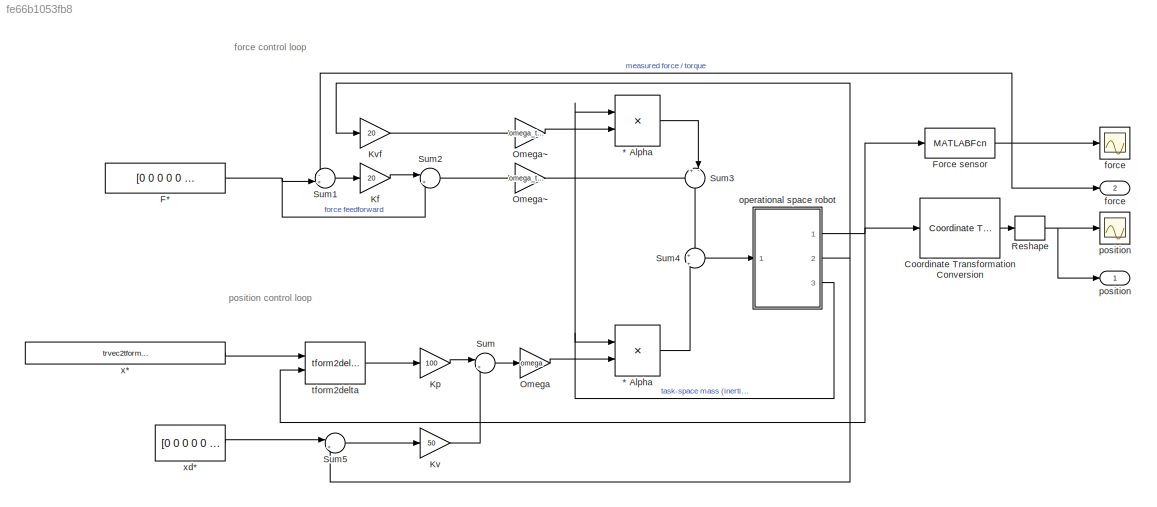
MODEL slx_fe66b1053fb8
KIND model
CONFIG AbsTol = auto
CONFIG EnableMultiTasking = on
CONFIG FixedStep = auto
CONFIG InitFcn = fprintf("Parameters initialized in InitFcn\n");\n\nif ~exist("puma", "var")\n   [puma, conf] = loadrvcrobot("puma");\nend\n\nq = [0 pi/4 pi 0 -pi/4 0];\nTE = se3(puma.getTransform(q, "link6"));\nSf = TE.rotm\n\n% edit next 2 lines to change compliant motion axes\n%  1 = freespace controlled motion\n%  0 = constrained compliant motion\n\nsigma_f = diag([1 1 0]);  % translation\nsigma_t = diag([1 1 1]);  % rotatio...<+130ch>
CONFIG MaxStep = auto
CONFIG MinStep = auto
CONFIG PreLoadFcn = if ~exist("puma", "var")\n   [puma, conf] = loadrvcrobot("puma");\nend\n
CONFIG RelTol = 1e-3
CONFIG SampleTimeConstraint = Unconstrained
CONFIG SolverName = VariableStepAuto
CONFIG StartTime = 0.0
CONFIG StopTime = 2
BLOCK [Product] * Alpha
  Multiplication = Matrix(*)
  Ports = [2, 1]
BLOCK [Product] * Alpha 
  Multiplication = Matrix(*)
  Ports = [2, 1]
BLOCK [Reference] Coordinate Transformation Conversion  REF=robotcorelib/Coordinate Transformation Conversion
  Ports = [1, 1]
  SourceBlock = robotcorelib/Coordinate Transformation Conversion
  SourceType = robotics.slcore.internal.block.CoordinateTransformationConversion
BLOCK [Constant] F*
  Value = [0 0 0 0 0 -5]
BLOCK [MATLABFcn] Force sensor
  MATLABFcn = [0 0 0 0 0 100*(0.8+u(3,4))*(u(3,4)<-0.8)]
  Ports = [1, 1]
BLOCK [Gain] Kf
  Gain = 20
BLOCK [Gain] Kp
  Gain = 100
BLOCK [Gain] Kv
  Gain = 50
BLOCK [Gain] Kvf
  Gain = 20
BLOCK [Gain] Omega
  Gain = omega
  Multiplication = Matrix(K*u)
BLOCK [Gain] Omega~
  Gain = omega_tilde
  Multiplication = Matrix(K*u)
BLOCK [Gain] Omega~ 
  Gain = omega_tilde
  Multiplication = Matrix(K*u)
BLOCK [Reshape] Reshape
  Ports = [1, 1]
BLOCK [Sum] Sum
  Inputs = |++
  Ports = [2, 1]
BLOCK [Sum] Sum1
  Inputs = -+|
  Ports = [2, 1]
BLOCK [Sum] Sum2
  Inputs = |++
  Ports = [2, 1]
BLOCK [Sum] Sum3
  Inputs = +-|
  NameLocation = left
  Ports = [2, 1]
BLOCK [Sum] Sum4
  Inputs = +|+
  Ports = [2, 1]
BLOCK [Sum] Sum5
  Inputs = |+-
  Ports = [2, 1]
BLOCK [Scope] force
  Floating = off
  NumInputPorts = 1
  Ports = [1]
  ScopeSpecificationString = Simulink.scopes.TimeScopeBlockCfg('CurrentConfiguration', extmgr.ConfigurationSet(extmgr.Configuration('Core','General UI',true),extmgr.Configuration('Core','Source UI',true),extmgr.Configuration('Sources','WiredSimulink',true,'DataLoggingVariableName','ScopeData2'),extmgr.Configuration('Visuals','Time Domain',true,'SerializedDisplays',{struct('MinYLimReal','-1.00000','MaxYLimReal','1.00000','YLab...<+1436ch>
BLOCK [Outport] force 
  Port = 2
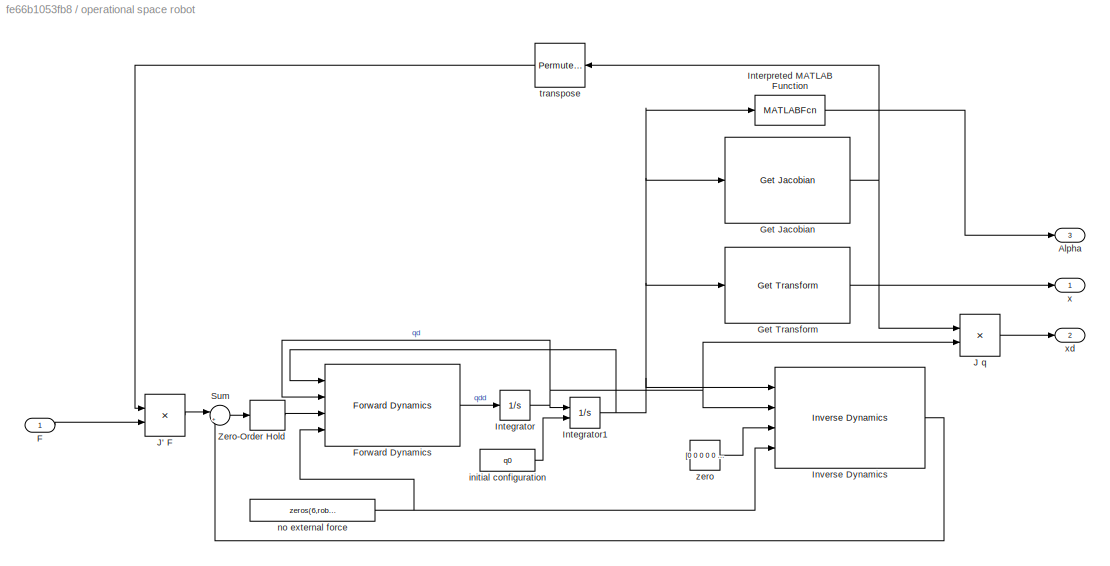
BLOCK [SubSystem] operational space robot
  Ports = [1, 3]
BLOCK [Outport] operational space robot/Alpha
  Port = 3
BLOCK [Inport] operational space robot/F
BLOCK [Reference] operational space robot/Forward Dynamics  REF=robotmaniplib/Forward Dynamics
  Ports = [4, 1]
  SourceBlock = robotmaniplib/Forward Dynamics
  SourceType = Forward Dynamics
BLOCK [Reference] operational space robot/Get Jacobian  REF=robotmaniplib/Get Jacobian
  Ports = [1, 1]
  SourceBlock = robotmaniplib/Get Jacobian
  SourceType = Get Jacobian
BLOCK [Reference] operational space robot/Get Transform  REF=robotmaniplib/Get Transform
  Ports = [1, 1]
  SourceBlock = robotmaniplib/Get Transform
  SourceType = Get Transform
BLOCK [Integrator] operational space robot/Integrator
  Ports = [1, 1]
BLOCK [Integrator] operational space robot/Integrator1
  InitialConditionSource = external
  Ports = [2, 1]
BLOCK [MATLABFcn] operational space robot/Interpreted MATLAB Function
  MATLABFcn = massMatrixTask(robot,u')
  Output1D = off
  OutputDimensions = [6 6]
  Ports = [1, 1]
BLOCK [Reference] operational space robot/Inverse Dynamics  REF=robotmaniplib/Inverse Dynamics
  Ports = [4, 1]
  SourceBlock = robotmaniplib/Inverse Dynamics
  SourceType = Inverse Dynamics
BLOCK [Product] operational space robot/J q
  Multiplication = Matrix(*)
  Ports = [2, 1]
BLOCK [Product] operational space robot/J' F
  Multiplication = Matrix(*)
  Ports = [2, 1]
BLOCK [Sum] operational space robot/Sum
  Inputs = |++
  Ports = [2, 1]
BLOCK [ZeroOrderHold] operational space robot/Zero-Order Hold
  SampleTime = 5e-3
BLOCK [Constant] operational space robot/initial configuration
  Value = q0
BLOCK [Constant] operational space robot/no external force
  Value = zeros(6,robot.NumBodies)
BLOCK [PermuteDimensions] operational space robot/transpose
BLOCK [Outport] operational space robot/x
BLOCK [Outport] operational space robot/xd
  Port = 2
BLOCK [Constant] operational space robot/zero
  Value = [0 0 0 0 0 0]
BLOCK [Scope] position
  Floating = off
  NumInputPorts = 1
  Ports = [1]
  ScopeSpecificationString = Simulink.scopes.TimeScopeBlockCfg('CurrentConfiguration', extmgr.ConfigurationSet(extmgr.Configuration('Core','General UI',true),extmgr.Configuration('Core','Source UI',true),extmgr.Configuration('Sources','WiredSimulink',true),extmgr.Configuration('Visuals','Time Domain',true,'SerializedDisplays',{struct('MinYLimReal','-0.25099','MaxYLimReal','0.75842','YLabelReal','','MinYLimMag','0.00000','MaxY...<+1397ch>
BLOCK [Outport] position 
BLOCK [Reference] tform2delta  REF=roblocks/tform2delta  (lib defined in mdl_2a292b13c81b, mdl_69400f8cfe22, +12 more)
  Ports = [2, 1]
  SourceBlock = roblocks/tform2delta
BLOCK [Constant] x*
  Value = trvec2tform([0.8, 0.2, 0.66]) * tformry(pi/2)
BLOCK [Constant] xd*
  Value = [0 0 0 0 0 0]
ANNOTATION (root): force control loop
ANNOTATION (root): position control loop
LINE * Alpha :1 -> Sum4:2
LINE * Alpha:1 -> Sum3:2
LINE Coordinate Transformation Conversion:1 -> Reshape:1
NET F*:1 -> Sum1:2, Sum2:2
NET Force sensor:1 -> Sum1:1, force :1, force:1
LINE Kf:1 -> Sum2:1
LINE Kp:1 -> Sum:1
LINE Kv:1 -> Sum:2
LINE Kvf:1 -> Omega~:1
LINE Omega:1 -> * Alpha :2
LINE Omega~ :1 -> Sum3:1
LINE Omega~:1 -> * Alpha:2
NET Reshape:1 -> position :1, position:1
LINE Sum1:1 -> Kf:1
LINE Sum2:1 -> Omega~ :1
LINE Sum3:1 -> Sum4:1
LINE Sum4:1 -> operational space robot:1
LINE Sum5:1 -> Kv:1
LINE Sum:1 -> Omega:1
LINE operational space robot/F:1 -> operational space robot/J' F:2
LINE operational space robot/Forward Dynamics:1 -> operational space robot/Integrator:1
NET operational space robot/Get Jacobian:1 -> operational space robot/J q:1, operational space robot/transpose:1
LINE operational space robot/Get Transform:1 -> operational space robot/x:1
NET operational space robot/Integrator1:1 -> operational space robot/Forward Dynamics:1, operational space robot/Get Jacobian:1, operational space robot/Get Transform:1, operational space robot/Interpreted MATLAB Function:1, operational space robot/Inverse Dynamics:1
NET operational space robot/Integrator:1 -> operational space robot/Forward Dynamics:2, operational space robot/Integrator1:1, operational space robot/Inverse Dynamics:2, operational space robot/J q:2
LINE operational space robot/Interpreted MATLAB Function:1 -> operational space robot/Alpha:1
LINE operational space robot/Inverse Dynamics:1 -> operational space robot/Sum:2
LINE operational space robot/J q:1 -> operational space robot/xd:1
LINE operational space robot/J' F:1 -> operational space robot/Sum:1
LINE operational space robot/Sum:1 -> operational space robot/Zero-Order Hold:1
LINE operational space robot/Zero-Order Hold:1 -> operational space robot/Forward Dynamics:3
LINE operational space robot/initial configuration:1 -> operational space robot/Integrator1:2
NET operational space robot/no external force:1 -> operational space robot/Forward Dynamics:4, operational space robot/Inverse Dynamics:4
LINE operational space robot/transpose:1 -> operational space robot/J' F:1
LINE operational space robot/zero:1 -> operational space robot/Inverse Dynamics:3
NET operational space robot:1 -> Coordinate Transformation Conversion:1, Force sensor:1, tform2delta:2
NET operational space robot:2 -> Kvf:1, Sum5:2
NET operational space robot:3 -> * Alpha :1, * Alpha:1
LINE tform2delta:1 -> Kp:1
LINE x*:1 -> tform2delta:1
LINE xd*:1 -> Sum5:1
note: NET lines group one-source signal fan-out (src -> all destinations, sorted); 1:1 wires keep LINE
